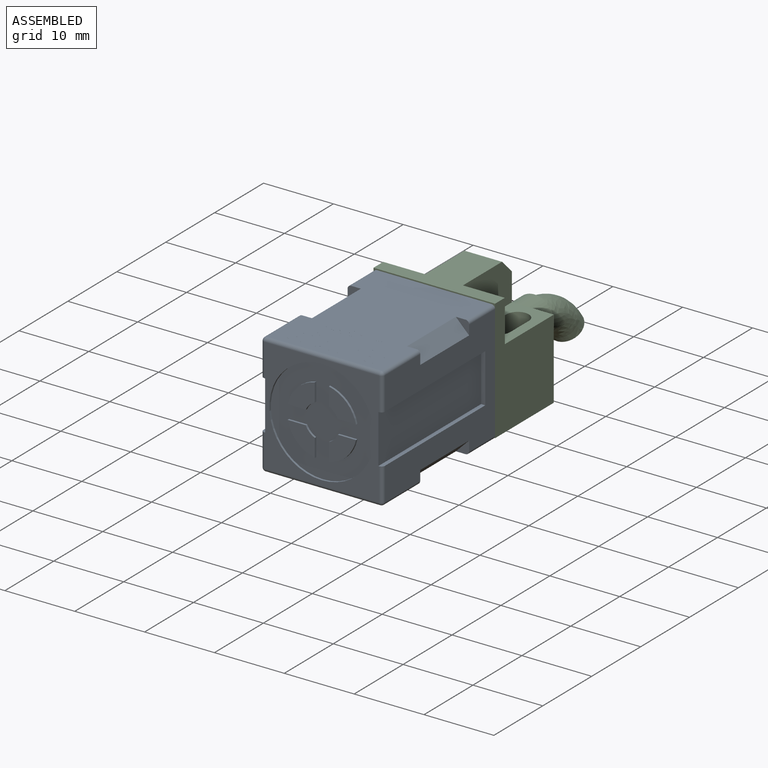
[diagram: assembled view]
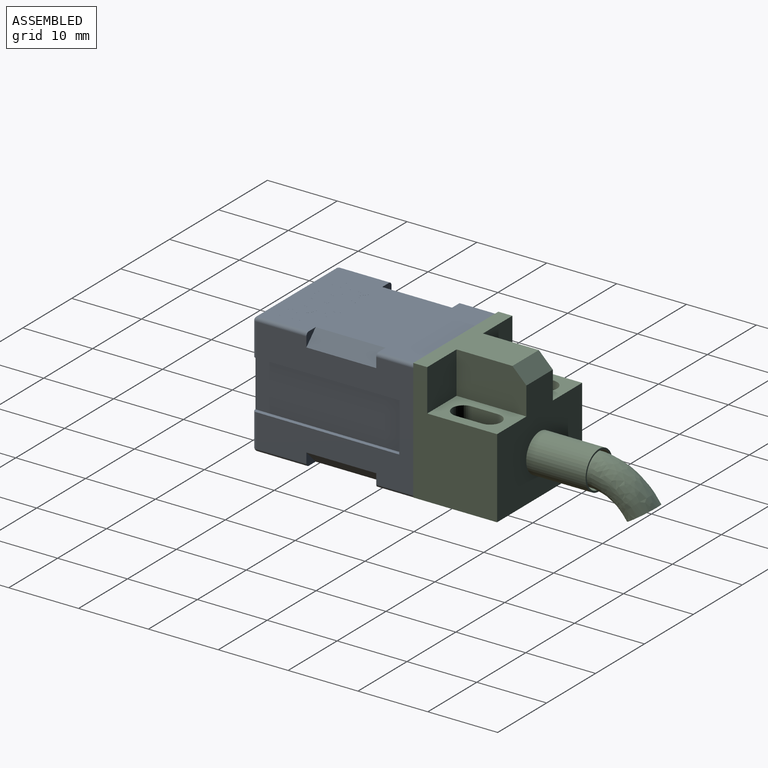
[diagram: assembled view, second angle]
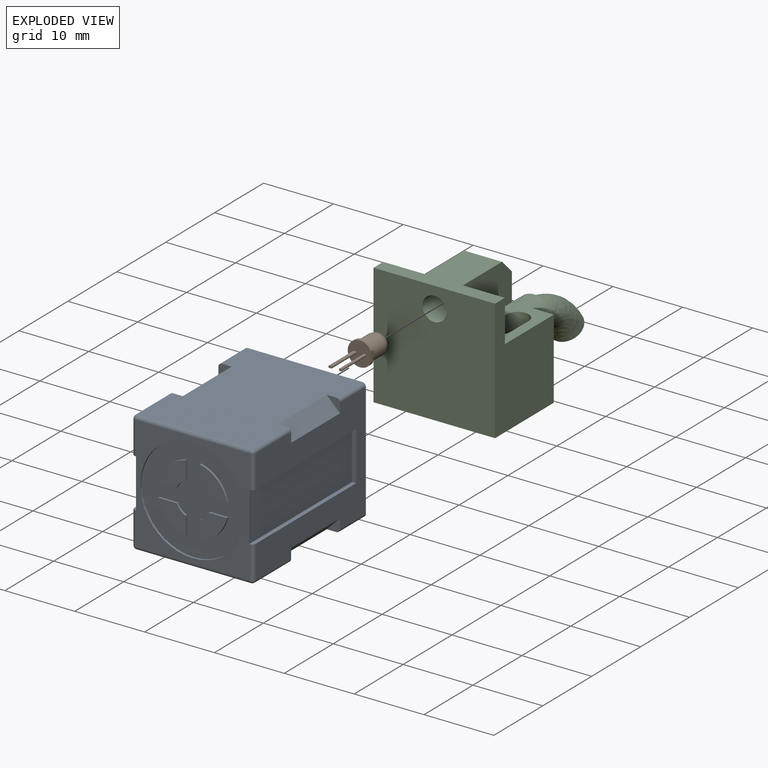
[diagram: exploded view]
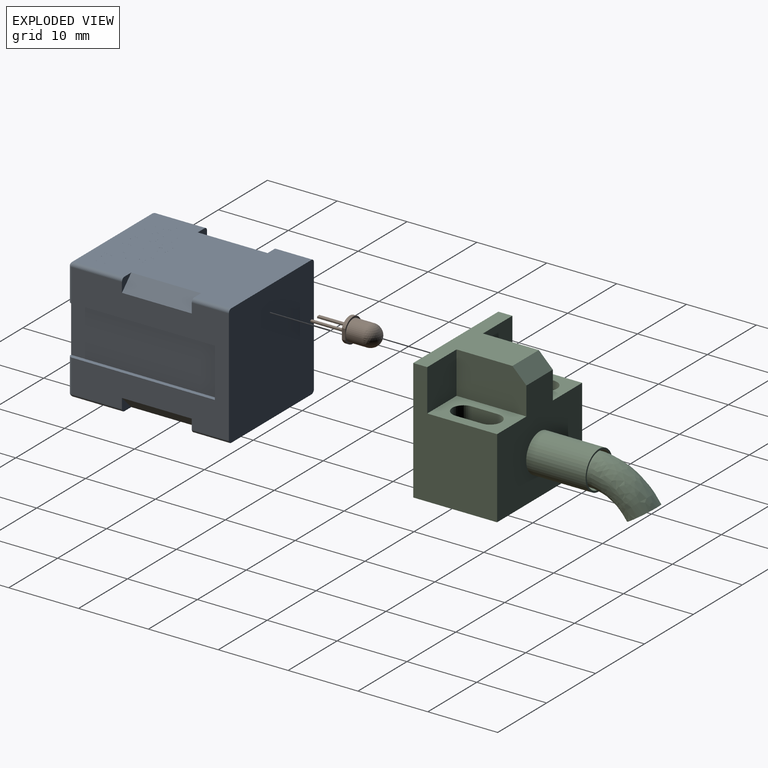
[diagram: exploded view, second angle]
ASSEMBLY  parts=3 mates=2
PART A: 190 faces, bbox 17.4x23x17.4 mm
  f0: cylinder r=7.5mm len=15mm, axis (0,-1,0), area 14.1mm2, adj f6,f15
  f1: plane 22.5x16.4mm, normal (0,0,1), area 303.2mm2, adj f5,f42,f43,f44,f45,f46,f47,f55
  f2: plane 22.5x16.4mm, normal (-1,0,0), area 197.5mm2, adj f5,f11,f12,f13,f36,f37,f38,f45
  f3: plane 22.5x16.4mm, normal (1,0,0), area 197.5mm2, adj f5,f7,f8,f9,f39,f40,f41,f42
  f4: plane 22.5x16.4mm, normal (0,0,-1), area 341mm2, adj f5,f36,f37,f38,f39,f40,f41,f49
  f5: plane 17.4x17.4mm, normal (0,1,0), area 302.5mm2, adj f1,f2,f3,f4,f62,f63,f64,f65
  f6: plane 16.4x16.4mm, normal (0,-1,0), area 90.8mm2, adj f0,f7,f9,f10,f11,f13,f14,f48
  f7: plane 21x0.6mm, normal (0,0,-1), area 12.5mm2, adj f3,f6,f8,f10,f56
  f8: plane 7x0.6mm, normal (0,-1,0), area 4.2mm2, adj f3,f7,f9,f10
  f9: plane 21x0.6mm, normal (0,0,1), area 12.5mm2, adj f3,f6,f8,f10,f48
  f10: plane 21x7mm, normal (1,0,0), area 147mm2, adj f6,f7,f8,f9
  f11: plane 21x0.6mm, normal (0,0,1), area 12.5mm2, adj f2,f6,f12,f14,f51
  f12: plane 7x0.6mm, normal (0,-1,0), area 4.2mm2, adj f2,f11,f13,f14
  f13: plane 21x0.6mm, normal (0,0,-1), area 12.5mm2, adj f2,f6,f12,f14,f61
  f14: plane 21x7mm, normal (-1,0,0), area 147mm2, adj f6,f11,f12,f13
  f15: plane 15x15mm, normal (0,-1,0), area 138.1mm2, adj f0,f16,f17,f18,f19,f20,f21,f22
  f16: cylinder r=2.5mm len=1.29mm, axis (0,-1,0), area 0.6mm2, adj f15,f17,f19,f34
  f17: plane 2.61x0.3mm, normal (0,0,-1), area 0.8mm2, adj f15,f16,f18,f34
  f18: cylinder r=5mm len=3.9mm, axis (0,-1,0), area 1.8mm2, adj f15,f17,f19,f34
  f19: plane 2.61x0.3mm, normal (1,0,0), area 0.8mm2, adj f15,f16,f18,f34
  f20: cylinder r=2.5mm len=1.29mm, axis (0,-1,0), area 0.6mm2, adj f15,f21,f23,f33
  f21: plane 2.61x0.3mm, normal (-1,0,0), area 0.8mm2, adj f15,f20,f22,f33
  f22: cylinder r=5mm len=3.9mm, axis (0,-1,0), area 1.8mm2, adj f15,f21,f23,f33
  f23: plane 2.61x0.3mm, normal (0,0,-1), area 0.8mm2, adj f15,f20,f22,f33
  f24: cylinder r=2.5mm len=1.29mm, axis (0,-1,0), area 0.6mm2, adj f15,f25,f27,f32
  f25: plane 2.61x0.3mm, normal (0,0,1), area 0.8mm2, adj f15,f24,f26,f32
  f26: cylinder r=5mm len=3.9mm, axis (0,-1,0), area 1.8mm2, adj f15,f25,f27,f32
  f27: plane 2.61x0.3mm, normal (-1,0,0), area 0.8mm2, adj f15,f24,f26,f32
  f28: cylinder r=2.5mm len=1.29mm, axis (0,-1,0), area 0.6mm2, adj f15,f29,f31,f35
  f29: plane 2.61x0.3mm, normal (1,0,0), area 0.8mm2, adj f15,f28,f30,f35
  f30: cylinder r=5mm len=3.9mm, axis (0,-1,0), area 1.8mm2, adj f15,f29,f31,f35
  f31: plane 2.61x0.3mm, normal (0,0,1), area 0.8mm2, adj f15,f28,f30,f35
  f32: plane 3.9x3.9mm, normal (0,-1,0), area 9.7mm2, adj f24,f25,f26,f27
  f33: plane 3.9x3.9mm, normal (0,-1,0), area 9.7mm2, adj f20,f21,f22,f23
  f34: plane 3.9x3.9mm, normal (0,-1,0), area 9.7mm2, adj f16,f17,f18,f19
  f35: plane 3.9x3.9mm, normal (0,-1,0), area 9.7mm2, adj f28,f29,f30,f31
  f36: plane 10x1.9mm, normal (-0.71,0,-0.71), area 26.9mm2, adj f2,f4,f37,f38
  f37: plane 1.9x1.9mm, normal (0,-1,0), area 1.8mm2, adj f2,f4,f36,f62
  f38: plane 1.9x1.9mm, normal (0,1,0), area 1.8mm2, adj f2,f4,f36,f50
  f39: plane 10x1.9mm, normal (0.71,0,-0.71), area 26.9mm2, adj f3,f4,f40,f41
  f40: plane 1.9x1.9mm, normal (0,-1,0), area 1.8mm2, adj f3,f4,f39,f63
  f41: plane 1.9x1.9mm, normal (0,1,0), area 1.8mm2, adj f3,f4,f39,f49
  f42: plane 10x1.9mm, normal (0.71,0,0.71), area 26.9mm2, adj f1,f3,f43,f44
  f43: plane 1.9x1.9mm, normal (0,-1,0), area 1.8mm2, adj f1,f3,f42,f64
  f44: plane 1.9x1.9mm, normal (0,1,0), area 1.8mm2, adj f1,f3,f42,f55
  f45: plane 10x1.9mm, normal (-0.71,0,0.71), area 26.9mm2, adj f1,f2,f46,f47
  f46: plane 1.9x1.9mm, normal (0,-1,0), area 1.8mm2, adj f1,f2,f45,f65
  f47: plane 1.9x1.9mm, normal (0,1,0), area 1.8mm2, adj f1,f2,f45,f58
  f48: cylinder r=0.5mm len=4.7mm, axis (0,0,1), area 3.7mm2, adj f3,f6,f9,f52
  f49: cylinder r=0.5mm len=7.2mm, axis (0,-1,0), area 5.7mm2, adj f3,f4,f41,f52
  f50: cylinder r=0.5mm len=7.2mm, axis (0,-1,0), area 5.7mm2, adj f2,f4,f38,f53
  f51: cylinder r=0.5mm len=4.7mm, axis (0,0,-1), area 3.7mm2, adj f2,f6,f11,f53
  f52: sphere r=0.5mm, area 0.4mm2, adj f48,f49,f54
  f53: sphere r=0.5mm, area 0.4mm2, adj f50,f51,f54
  f54: cylinder r=0.5mm len=16.4mm, axis (1,0,0), area 12.9mm2, adj f4,f6,f52,f53
  f55: cylinder r=0.5mm len=7.2mm, axis (0,-1,0), area 5.7mm2, adj f1,f3,f44,f57
  f56: cylinder r=0.5mm len=4.7mm, axis (0,0,1), area 3.7mm2, adj f3,f6,f7,f57
  f57: sphere r=0.5mm, area 0.4mm2, adj f55,f56,f59
  f58: cylinder r=0.5mm len=7.2mm, axis (0,-1,0), area 5.7mm2, adj f1,f2,f47,f60
  f59: cylinder r=0.5mm len=16.4mm, axis (-1,0,0), area 12.9mm2, adj f1,f6,f57,f60
  f60: sphere r=0.5mm, area 0.4mm2, adj f58,f59,f61
  f61: cylinder r=0.5mm len=4.7mm, axis (0,0,-1), area 3.7mm2, adj f2,f6,f13,f60
  f62: cylinder r=0.5mm len=5.3mm, axis (0,-1,0), area 4.2mm2, adj f2,f4,f5,f37
  f63: cylinder r=0.5mm len=5.3mm, axis (0,-1,0), area 4.2mm2, adj f3,f4,f5,f40
  f64: cylinder r=0.5mm len=5.3mm, axis (0,-1,0), area 4.2mm2, adj f1,f3,f5,f43
  f65: cylinder r=0.5mm len=5.3mm, axis (0,-1,0), area 4.2mm2, adj f1,f2,f5,f46
  f66: plane 3.5x0mm, normal (1,0,0), area 0mm2, adj f1,f67,f75,f76
  f67: plane 1.19x0mm, normal (0,1,0), area 0mm2, adj f1,f66,f68,f76
  f68: plane 1.48x0mm, normal (-1,0,0), area 0mm2, adj f1,f67,f69,f76
  f69: plane 0.7x0mm, normal (0,1,0), area 0mm2, adj f1,f68,f70,f76
  f70: plane 0.66x0mm, normal (-1,0,0), area 0mm2, adj f1,f69,f71,f76
  f71: plane 0.7x0mm, normal (0,-1,0), area 0mm2, adj f1,f70,f72,f76
  f72: plane 0.66x0mm, normal (-1,0,0), area 0mm2, adj f1,f71,f73,f76
  f73: plane 0.78x0mm, normal (0,1,0), area 0mm2, adj f1,f72,f74,f76
  f74: plane 0.7x0mm, normal (-1,0,0), area 0mm2, adj f1,f73,f75,f76
  f75: plane 1.98x0mm, normal (0,-1,0), area 0mm2, adj f1,f66,f74,f76
  f76: plane 3.5x1.98mm, normal (0,0,1), area 5.2mm2, adj f66,f67,f68,f69,f70,f71,f72,f73
  f77: plane 3.66x2.72mm, normal (0,0,1), area 8.1mm2, adj f78,f79,f80,f81,f82,f83,f84,f85
  f78: plane 0.6x0mm, normal (-1,0,0), area 0mm2, adj f1,f77,f79,f83
  f79: extruded ~1.53x1.36mm, area 0mm2, adj f1,f77,f78,f80
  f80: extruded ~1.53x1.36mm, area 0mm2, adj f1,f77,f79,f81
  f81: plane 0.6x0mm, normal (1,0,0), area 0mm2, adj f1,f77,f80,f82
  f82: extruded ~1.53x1.36mm, area 0mm2, adj f1,f77,f81,f83
  f83: extruded ~1.53x1.36mm, area 0mm2, adj f1,f77,f78,f82
  f84: plane 1.64x0mm, normal (1,0,0), area 0mm2, adj f77,f85,f89,f90
  f85: extruded ~0.39x0.16mm, area 0mm2, adj f77,f84,f86,f90
  f86: extruded ~0.39x0.17mm, area 0mm2, adj f77,f85,f87,f90
  f87: plane 1.67x0mm, normal (-1,0,0), area 0mm2, adj f77,f86,f88,f90
  f88: extruded ~0.46x0.16mm, area 0mm2, adj f77,f87,f89,f90
  f89: extruded ~0.48x0.17mm, area 0mm2, adj f77,f84,f88,f90
  f90: plane 2.51x0.33mm, normal (0,0,1), area 0.8mm2, adj f84,f85,f86,f87,f88,f89
  f91: plane 2.55x0mm, normal (0,-1,0), area 0mm2, adj f1,f92,f98,f99
  f92: plane 0.7x0mm, normal (1,0,0), area 0mm2, adj f1,f91,f93,f99
  f93: plane 0.7x0mm, normal (0,1,0), area 0mm2, adj f1,f92,f94,f99
  f94: plane 2.8x0mm, normal (1,0,0), area 0mm2, adj f1,f93,f95,f99
  f95: plane 1.19x0mm, normal (0,1,0), area 0mm2, adj f1,f94,f96,f99
  f96: plane 2.8x0mm, normal (-1,0,0), area 0mm2, adj f1,f95,f97,f99
  f97: plane 0.66x0mm, normal (0,1,0), area 0mm2, adj f1,f96,f98,f99
  f98: plane 0.7x0mm, normal (-1,0,0), area 0mm2, adj f1,f91,f97,f99
  f99: plane 3.5x2.55mm, normal (0,0,1), area 5.1mm2, adj f91,f92,f93,f94,f95,f96,f97,f98
  f100: plane 3.5x0mm, normal (1,0,0), area 0mm2, adj f1,f101,f111,f112
  f101: plane 2.02x0mm, normal (0,1,0), area 0mm2, adj f1,f100,f102,f112
  f102: plane 0.7x0mm, normal (-1,0,0), area 0mm2, adj f1,f101,f103,f112
  f103: plane 0.82x0mm, normal (0,-1,0), area 0mm2, adj f1,f102,f104,f112
  f104: plane 0.78x0mm, normal (-1,0,0), area 0mm2, adj f1,f103,f105,f112
  f105: plane 0.7x0mm, normal (0,1,0), area 0mm2, adj f1,f104,f106,f112
  f106: plane 0.66x0mm, normal (-1,0,0), area 0mm2, adj f1,f105,f107,f112
  f107: plane 0.7x0mm, normal (0,-1,0), area 0mm2, adj f1,f106,f108,f112
  f108: plane 0.66x0mm, normal (-1,0,0), area 0mm2, adj f1,f107,f109,f112
  f109: plane 0.74x0mm, normal (0,1,0), area 0mm2, adj f1,f108,f110,f112
  f110: plane 0.7x0mm, normal (-1,0,0), area 0mm2, adj f1,f109,f111,f112
  f111: plane 1.94x0mm, normal (0,-1,0), area 0mm2, adj f1,f100,f110,f112
  f112: plane 3.5x2.02mm, normal (0,0,1), area 5.7mm2, adj f100,f101,f102,f103,f104,f105,f106,f107
  f113: plane 1.11x0mm, normal (0,-1,0), area 0mm2, adj f1,f114,f123,f124
  f114: plane 1.36x0.51mm, normal (0.94,-0.35,0), area 0mm2, adj f1,f113,f115,f124
  f115: plane 1.36x0mm, normal (-1,0,0), area 0mm2, adj f1,f114,f116,f124
  f116: plane 1.19x0mm, normal (0,-1,0), area 0mm2, adj f1,f115,f117,f124
  f117: plane 3.5x0mm, normal (1,0,0), area 0mm2, adj f1,f116,f118,f124
  f118: plane 1.19x0mm, normal (0,1,0), area 0mm2, adj f1,f117,f119,f124
  f119: plane 1.5x0mm, normal (-1,0,0), area 0mm2, adj f1,f118,f120,f124
  f120: plane 1.5x0.47mm, normal (0.95,0.3,0), area 0mm2, adj f1,f119,f121,f124
  f121: plane 1.19x0mm, normal (0,1,0), area 0mm2, adj f1,f120,f122,f124
  f122: plane 1.92x0.72mm, normal (-0.94,-0.35,0), area 0mm2, adj f1,f121,f123,f124
  f123: plane 1.58x0.68mm, normal (-0.92,0.4,0), area 0mm2, adj f1,f113,f122,f124
  f124: plane 3.5x2.86mm, normal (0,0,1), area 8mm2, adj f113,f114,f115,f116,f117,f118,f119,f120
  f125: plane 0.18x0mm, normal (0,1,0), area 0mm2, adj f1,f126,f134,f135
  f126: plane 1.21x0mm, normal (-1,0,0), area 0mm2, adj f1,f125,f127,f135
  f127: plane 1.24x1.21mm, normal (0.7,0.72,0), area 0mm2, adj f1,f126,f128,f135
  f128: plane 0.04x0mm, normal (0,1,0), area 0mm2, adj f1,f127,f129,f135
  f129: plane 1.59x0mm, normal (-1,0,0), area 0mm2, adj f1,f128,f130,f135
  f130: plane 0.18x0mm, normal (0,-1,0), area 0mm2, adj f1,f129,f131,f135
  f131: plane 1.21x0mm, normal (1,0,0), area 0mm2, adj f1,f130,f132,f135
  f132: plane 1.24x1.21mm, normal (-0.7,-0.72,0), area 0mm2, adj f1,f131,f133,f135
  f133: plane 0.04x0mm, normal (0,-1,0), area 0mm2, adj f1,f132,f134,f135
  f134: plane 1.59x0mm, normal (1,0,0), area 0mm2, adj f1,f125,f133,f135
  f135: plane 1.59x1.47mm, normal (0,0,1), area 0.8mm2, adj f125,f126,f127,f128,f129,f130,f131,f132
  f136: plane 0.79x0mm, normal (0,-1,0), area 0mm2, adj f1,f137,f149,f150
  f137: plane 0.79x0.18mm, normal (0.97,-0.22,0), area 0mm2, adj f1,f136,f138,f150
  f138: extruded ~0.41x0.08mm, area 0mm2, adj f1,f137,f139,f150
  f139: extruded ~0.45x0.35mm, area 0mm2, adj f1,f138,f140,f150
  f140: extruded ~0.46x0.4mm, area 0mm2, adj f1,f139,f141,f150
  f141: extruded ~0.4x0.29mm, area 0mm2, adj f1,f140,f142,f150
  f142: plane 0.18x0mm, normal (0,-1,0), area 0mm2, adj f1,f141,f143,f150
  f143: extruded ~0.57x0.45mm, area 0mm2, adj f1,f142,f144,f150
  f144: extruded ~0.65x0.56mm, area 0mm2, adj f1,f143,f145,f150
  f145: extruded ~0.58x0.52mm, area 0mm2, adj f1,f144,f146,f150
  f146: extruded ~0.22x0.03mm, area 0mm2, adj f1,f145,f147,f150
  f147: plane 0.42x0.1mm, normal (-0.97,0.23,0), area 0mm2, adj f1,f146,f148,f150
  f148: plane 0.64x0mm, normal (0,1,0), area 0mm2, adj f1,f147,f149,f150
  f149: plane 0.16x0mm, normal (-1,0,0), area 0mm2, adj f1,f136,f148,f150
  f150: plane 1.63x1.22mm, normal (0,0,1), area 0.7mm2, adj f136,f137,f138,f139,f140,f141,f142,f143
  f151: plane 1.67x1.28mm, normal (0,0,1), area 0.7mm2, adj f152,f153,f154,f155,f156,f157,f158,f159
  f152: extruded ~0.83x0.63mm, area 0mm2, adj f1,f151,f153,f155
  f153: extruded ~0.83x0.65mm, area 0mm2, adj f1,f151,f152,f154
  f154: extruded ~0.84x0.65mm, area 0mm2, adj f1,f151,f153,f155
  f155: extruded ~0.84x0.63mm, area 0mm2, adj f1,f151,f152,f154
  f156: extruded ~0.67x0.45mm, area 0mm2, adj f151,f157,f160,f161
  f157: extruded ~0.67x0.45mm, area 0mm2, adj f151,f156,f158,f161
  f158: extruded ~0.39x0.27mm, area 0mm2, adj f151,f157,f159,f161
  f159: extruded ~0.4x0.07mm, area 0mm2, adj f151,f158,f160,f161
  f160: extruded ~0.67x0.46mm, area 0mm2, adj f151,f156,f159,f161
  f161: plane 1.34x0.92mm, normal (0,0,1), area 1mm2, adj f156,f157,f158,f159,f160
  f162: plane 0.16x0mm, normal (1,0,0), area 0mm2, adj f1,f163,f165,f166
  f163: plane 0.73x0mm, normal (0,1,0), area 0mm2, adj f1,f162,f164,f166
  f164: plane 0.16x0mm, normal (-1,0,0), area 0mm2, adj f1,f163,f165,f166
  f165: plane 0.73x0mm, normal (0,-1,0), area 0mm2, adj f1,f162,f164,f166
  f166: plane 0.73x0.16mm, normal (0,0,1), area 0.1mm2, adj f162,f163,f164,f165
  f167: plane 1.59x0mm, normal (1,0,0), area 0mm2, adj f1,f168,f172,f173
  f168: plane 0.92x0mm, normal (0,1,0), area 0mm2, adj f1,f167,f169,f173
  f169: plane 0.16x0mm, normal (-1,0,0), area 0mm2, adj f1,f168,f170,f173
  f170: plane 0.73x0mm, normal (0,-1,0), area 0mm2, adj f1,f169,f171,f173
  f171: plane 1.42x0mm, normal (-1,0,0), area 0mm2, adj f1,f170,f172,f173
  f172: plane 0.18x0mm, normal (0,-1,0), area 0mm2, adj f1,f167,f171,f173
  f173: plane 1.59x0.92mm, normal (0,0,1), area 0.4mm2, adj f167,f168,f169,f170,f171,f172
  f174: plane 1.59x1.16mm, normal (0,0,1), area 0.6mm2, adj f175,f176,f177,f178,f179,f180,f181,f182
  f175: plane 1.59x0mm, normal (1,0,0), area 0mm2, adj f1,f174,f176,f183
  f176: plane 0.18x0mm, normal (0,1,0), area 0mm2, adj f1,f174,f175,f177
  f177: plane 0.73x0mm, normal (-1,0,0), area 0mm2, adj f1,f174,f176,f178
  f178: plane 0.13x0mm, normal (0,1,0), area 0mm2, adj f1,f174,f177,f179
  f179: extruded ~0.47x0.03mm, area 0mm2, adj f1,f174,f178,f180
  f180: extruded ~0.4x0.37mm, area 0mm2, adj f1,f174,f179,f181
  f181: extruded ~0.4x0.36mm, area 0mm2, adj f1,f174,f180,f182
  f182: extruded ~0.43x0.02mm, area 0mm2, adj f1,f174,f181,f183
  f183: plane 0.37x0mm, normal (0,-1,0), area 0mm2, adj f1,f174,f175,f182
  f184: plane 0.33x0mm, normal (0,1,0), area 0mm2, adj f174,f185,f188,f189
  f185: plane 0.53x0mm, normal (-1,0,0), area 0mm2, adj f174,f184,f186,f189
  f186: plane 0.32x0mm, normal (-0.01,-1,0), area 0mm2, adj f174,f185,f187,f189
  f187: extruded ~0.48x0.27mm, area 0mm2, adj f174,f186,f188,f189
  f188: extruded ~0.46x0.26mm, area 0mm2, adj f174,f184,f187,f189
  f189: plane 0.79x0.53mm, normal (0,0,1), area 0.4mm2, adj f184,f185,f186,f187,f188
PART B: 24 faces, bbox 3.3x9.5x3.5 mm
  f0: sphere r=1.5mm, area 14.1mm2, adj f1
  f1: cylinder r=1.5mm len=3mm, axis (0,-1,0), area 23.6mm2, adj f0,f4
  f2: cylinder r=1.75mm len=3.5mm, axis (0,-1,0), area 4.7mm2, adj f3,f4,f5
  f3: plane 3.5x3.33mm, normal (0,-1,0), area 9.2mm2, adj f2,f5,f6,f7,f8,f9,f10,f11
  f4: plane 3.5x3.33mm, normal (0,1,0), area 2.4mm2, adj f1,f2,f5
  f5: plane 1.5x0.5mm, normal (1,0,0), area 0.8mm2, adj f2,f3,f4
  f6: cylinder r=0.1mm len=5mm, axis (0,1,0), area 0.8mm2, adj f3,f7,f13,f14
  f7: plane 5x0.2mm, normal (0,0,1), area 1mm2, adj f3,f6,f8,f14
  f8: cylinder r=0.1mm len=5mm, axis (0,1,0), area 0.8mm2, adj f3,f7,f9,f14
  f9: plane 5x0.1mm, normal (-1,0,0), area 0.5mm2, adj f3,f8,f10,f14
  f10: cylinder r=0.1mm len=5mm, axis (0,1,0), area 0.8mm2, adj f3,f9,f11,f14
  f11: plane 5x0.2mm, normal (0,0,-1), area 1mm2, adj f3,f10,f12,f14
  f12: cylinder r=0.1mm len=5mm, axis (0,1,0), area 0.8mm2, adj f3,f11,f13,f14
  f13: plane 5x0.1mm, normal (1,0,0), area 0.5mm2, adj f3,f6,f12,f14
  f14: plane 0.4x0.3mm, normal (0,-1,0), area 0.1mm2, adj f6,f7,f8,f9,f10,f11,f12,f13
  f15: cylinder r=0.1mm len=5mm, axis (0,1,0), area 0.8mm2, adj f3,f16,f22,f23
  f16: plane 5x0.1mm, normal (1,0,0), area 0.5mm2, adj f3,f15,f17,f23
  f17: cylinder r=0.1mm len=5mm, axis (0,1,0), area 0.8mm2, adj f3,f16,f18,f23
  f18: plane 5x0.3mm, normal (0,0,1), area 1.5mm2, adj f3,f17,f19,f23
  f19: cylinder r=0.1mm len=5mm, axis (0,1,0), area 0.8mm2, adj f3,f18,f20,f23
  f20: plane 5x0.1mm, normal (-1,0,0), area 0.5mm2, adj f3,f19,f21,f23
  f21: cylinder r=0.1mm len=5mm, axis (0,1,0), area 0.8mm2, adj f3,f20,f22,f23
  f22: plane 5x0.3mm, normal (0,0,-1), area 1.5mm2, adj f3,f15,f21,f23
  f23: plane 0.5x0.3mm, normal (0,-1,0), area 0.1mm2, adj f15,f16,f17,f18,f19,f20,f21,f22
PART C: 31 faces, bbox 18x29.5x18 mm
  f0: bspline ~9x8.73mm, area 109.9mm2, adj f1,f30
  f1: cylinder r=2.25mm len=8.59mm, axis (0,-1,0), area 120.1mm2, adj f0,f28
  f2: torus R=0.2mm, axis (0,-1,0), area 17.1mm2, adj f3,f29
  f3: cylinder r=1.7mm len=8.5mm, axis (0,-1,0), area 90.8mm2, adj f2,f11
  f4: cylinder r=2.5mm len=8.5mm, axis (0,1,0), area 133.5mm2, adj f27,f28
  f5: cylinder r=2.75mm len=8.5mm, axis (0,-1,0), area 146.9mm2, adj f10,f27
  f6: plane 17.4x12mm, normal (-1,0,0), area 148.8mm2, adj f7,f9,f10,f11,f15,f17
  f7: plane 17.4x10mm, normal (0,0,1), area 78mm2, adj f6,f8,f11,f12,f14,f16,f17,f18
  f8: plane 17.4x12mm, normal (1,0,0), area 148.8mm2, adj f7,f9,f10,f11,f13,f14
  f9: plane 17.4x12mm, normal (0,0,-1), area 168.4mm2, adj f6,f8,f10,f11,f19,f20,f21,f22
  f10: plane 17.4x15.4mm, normal (0,1,0), area 196.2mm2, adj f5,f6,f8,f9,f12,f13,f15,f16
  f11: plane 17.4x17.4mm, normal (0,-1,0), area 293.7mm2, adj f3,f6,f7,f8,f9
  f12: plane 10x6mm, normal (1,0,0), area 58mm2, adj f7,f10,f13,f14,f18
  f13: plane 10x6mm, normal (0,0,1), area 39.8mm2, adj f8,f10,f12,f14,f19,f20,f21,f22
  f14: plane 6x6mm, normal (0,1,0), area 36mm2, adj f7,f8,f12,f13
  f15: plane 10x6mm, normal (0,0,1), area 39.8mm2, adj f6,f10,f16,f17,f23,f24,f25,f26
  f16: plane 10x6mm, normal (-1,0,0), area 58mm2, adj f7,f10,f15,f17,f18
  f17: plane 6x6mm, normal (0,1,0), area 36mm2, adj f6,f7,f15,f16
  f18: plane 5.4x2mm, normal (0,0.71,0.71), area 15.3mm2, adj f7,f10,f12,f16
  f19: cylinder r=1.6mm len=11.4mm, axis (0,0,1), area 57.3mm2, adj f9,f13,f20,f22
  f20: plane 11.4x3.8mm, normal (-1,0,0), area 43.3mm2, adj f9,f13,f19,f21
  f21: cylinder r=1.6mm len=11.4mm, axis (0,0,1), area 57.3mm2, adj f9,f13,f20,f22
  f22: plane 11.4x3.8mm, normal (1,0,0), area 43.3mm2, adj f9,f13,f19,f21
  f23: cylinder r=1.6mm len=11.4mm, axis (0,0,1), area 57.3mm2, adj f9,f15,f24,f26
  f24: plane 11.4x3.8mm, normal (-1,0,0), area 43.3mm2, adj f9,f15,f23,f25
  f25: cylinder r=1.6mm len=11.4mm, axis (0,0,1), area 57.3mm2, adj f9,f15,f24,f26
  f26: plane 11.4x3.8mm, normal (1,0,0), area 43.3mm2, adj f9,f15,f23,f25
  f27: plane 5.5x5.5mm, normal (0,1,0), area 4.1mm2, adj f4,f5
  f28: plane 5x5mm, normal (0,1,0), area 3.7mm2, adj f1,f4
  f29: plane 0.4x0.4mm, normal (0,-1,0), area 0.1mm2, adj f2
  f30: plane 5.13x4.38mm, normal (0,0.55,-0.83), area 15.9mm2, adj f0
PLACE A t=(1.52,-21.91,7.55)mm
PLACE B t=(1.52,-21.41,7.73)mm
PLACE C t=(1.52,-21.91,7.73)mm
MATE fastened B.f1 <-> C.f2  axis (0,-1,0) through (5.41,14.28,30.72)mm
MATE fastened C.f11 <-> A.f0  axis (0,-1,0) through (5.41,5.78,24.84)mm
